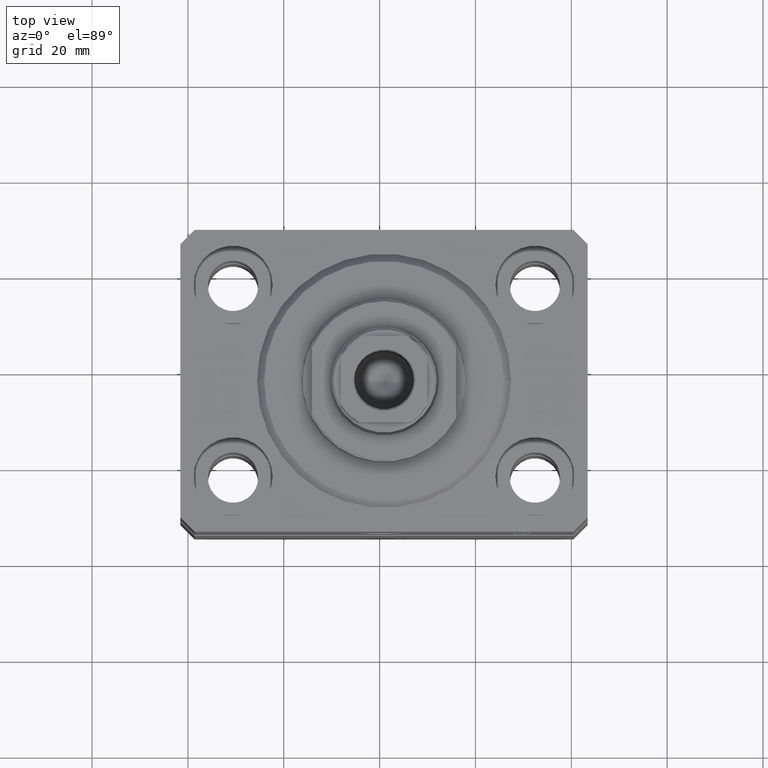
[diagram: clean part render]
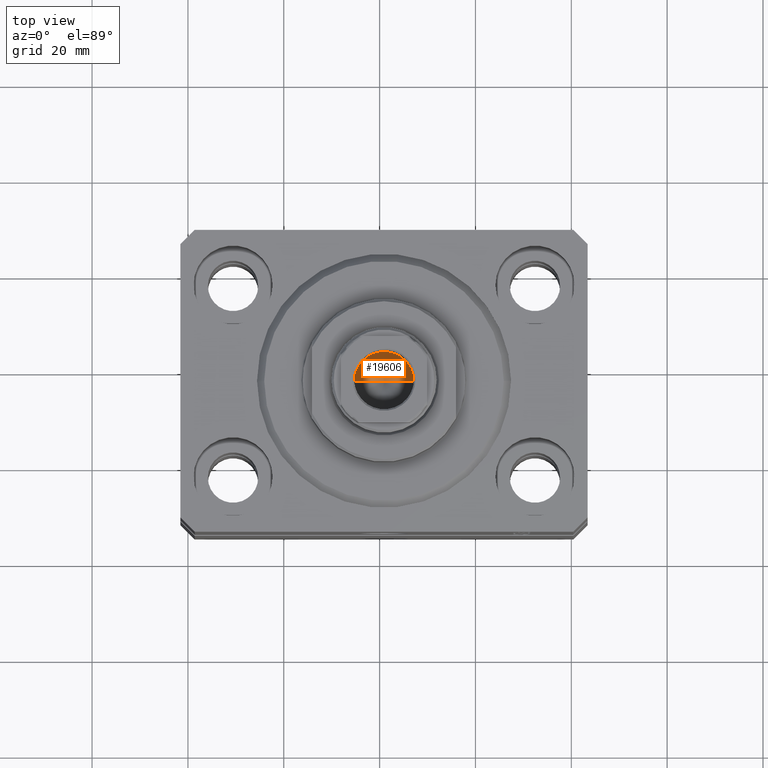
[diagram: same view with one face highlighted and labeled with its STEP entity id]
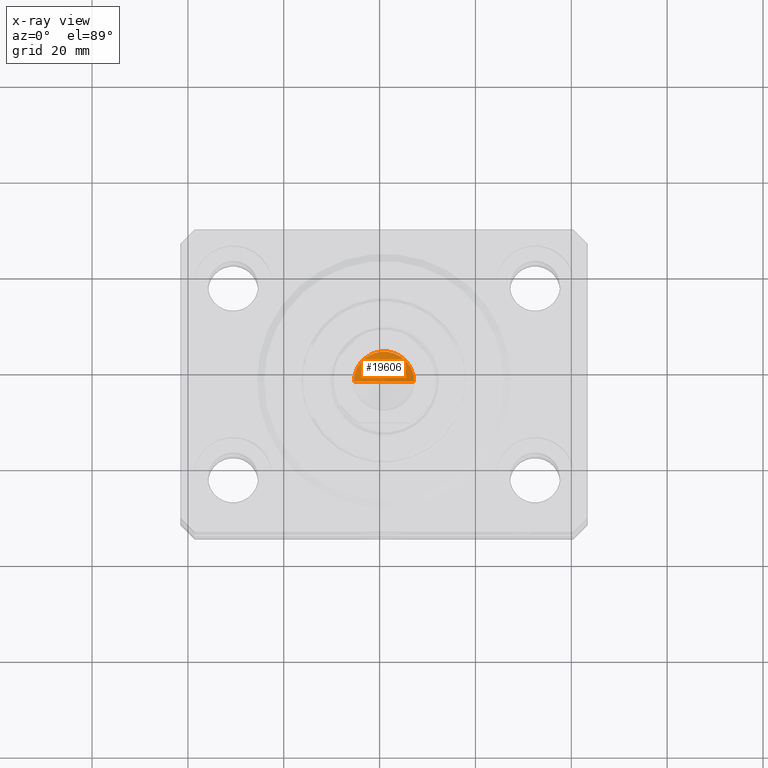
[diagram: x-ray of the same camera — body ghosted, the highlighted face saturated]
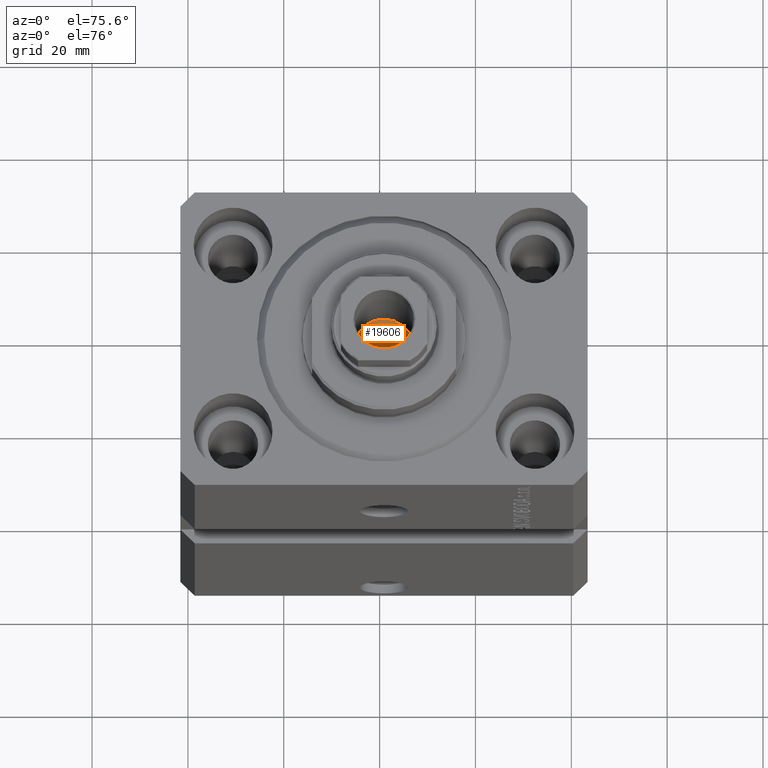
[diagram: same view with one face highlighted and labeled with its STEP entity id]
A machine part, top view. The second image highlights one B-rep face of the part: STEP entity #19606.
The next image is the same camera in x-ray: the body ghosted, the highlighted face saturated — about 0% of this face is hidden behind the body in this view.
A second angle (auxiliary view) of the same face is appended — the face is thin or edge-on in the first view.
In plain terms, the highlighted conical surface has half-angle 59 deg.
Its self-contained STEP definition (entity closure, byte-faithful):
#559 = AXIS2_PLACEMENT_3D ( 'NONE', #6176, #36605, #5510 ) ;
#4549 = EDGE_CURVE ( 'NONE', #17192, #37401, #28065, .T. ) ;
#5510 = DIRECTION ( 'NONE',  ( 1.000000000000000000, 0.000000000000000000, 0.000000000000000000 ) ) ;
#5788 = EDGE_CURVE ( 'NONE', #17192, #21213, #23017, .T. ) ;
#6176 = CARTESIAN_POINT ( 'NONE',  ( 0.000000000000000000, 0.000000000000000000, 73.59999999999999432 ) ) ;
#6245 = ORIENTED_EDGE ( 'NONE', *, *, #5788, .F. ) ;
#6481 = CARTESIAN_POINT ( 'NONE',  ( -7.434177670704979810E-15, 0.000000000000000000, 69.84462113107775849 ) ) ;
#7190 = DIRECTION ( 'NONE',  ( 0.8571673007021122226, 0.000000000000000000, 0.5150380749100541555 ) ) ;
#8980 = DIRECTION ( 'NONE',  ( -0.000000000000000000, -0.000000000000000000, 1.000000000000000000 ) ) ;
#17192 = VERTEX_POINT ( 'NONE', #6481 ) ;
#18286 = CARTESIAN_POINT ( 'NONE',  ( 0.000000000000000000, 0.000000000000000000, 73.59999999999999432 ) ) ;
#18810 = EDGE_LOOP ( 'NONE', ( #6245, #36449, #44678 ) ) ;
#19606 = ADVANCED_FACE ( 'NONE', ( #36669 ), #41798, .F. ) ;
#21213 = VERTEX_POINT ( 'NONE', #28482 ) ;
#22343 = EDGE_CURVE ( 'NONE', #37401, #21213, #31732, .T. ) ;
#23017 = LINE ( 'NONE', #36401, #30678 ) ;
#24440 = CARTESIAN_POINT ( 'NONE',  ( 6.249999999999993783, 0.000000000000000000, 73.59999999999999432 ) ) ;
#26272 = VECTOR ( 'NONE', #7190, 1000.000000000000114 ) ;
#28065 = LINE ( 'NONE', #24440, #26272 ) ;
#28482 = CARTESIAN_POINT ( 'NONE',  ( -6.249999999999993783, 7.654042494670949718E-16, 73.59999999999999432 ) ) ;
#30678 = VECTOR ( 'NONE', #39575, 1000.000000000000114 ) ;
#31385 = CARTESIAN_POINT ( 'NONE',  ( 6.249999999999993783, 0.000000000000000000, 73.59999999999999432 ) ) ;
#31732 = CIRCLE ( 'NONE', #559, 6.249999999999993783 ) ;
#36401 = CARTESIAN_POINT ( 'NONE',  ( -6.249999999999993783, 7.654042494670949718E-16, 73.59999999999999432 ) ) ;
#36449 = ORIENTED_EDGE ( 'NONE', *, *, #4549, .T. ) ;
#36605 = DIRECTION ( 'NONE',  ( -0.000000000000000000, -0.000000000000000000, 1.000000000000000000 ) ) ;
#36669 = FACE_OUTER_BOUND ( 'NONE', #18810, .T. ) ;
#37401 = VERTEX_POINT ( 'NONE', #31385 ) ;
#39575 = DIRECTION ( 'NONE',  ( -0.8571673007021122226, 1.049727191138618696E-16, 0.5150380749100541555 ) ) ;
#41798 = CONICAL_SURFACE ( 'NONE', #42526, 6.249999999999993783, 1.029744258676654534 ) ;
#42526 = AXIS2_PLACEMENT_3D ( 'NONE', #18286, #8980, #43009 ) ;
#43009 = DIRECTION ( 'NONE',  ( 1.000000000000000000, 0.000000000000000000, 0.000000000000000000 ) ) ;
#44678 = ORIENTED_EDGE ( 'NONE', *, *, #22343, .T. ) ;